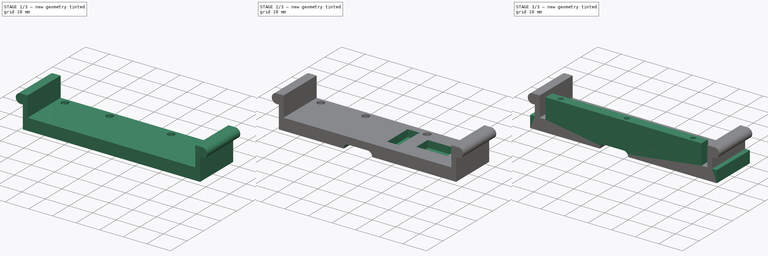
[diagram: build sequence overview — one tinted view per stage of 3, left to right]
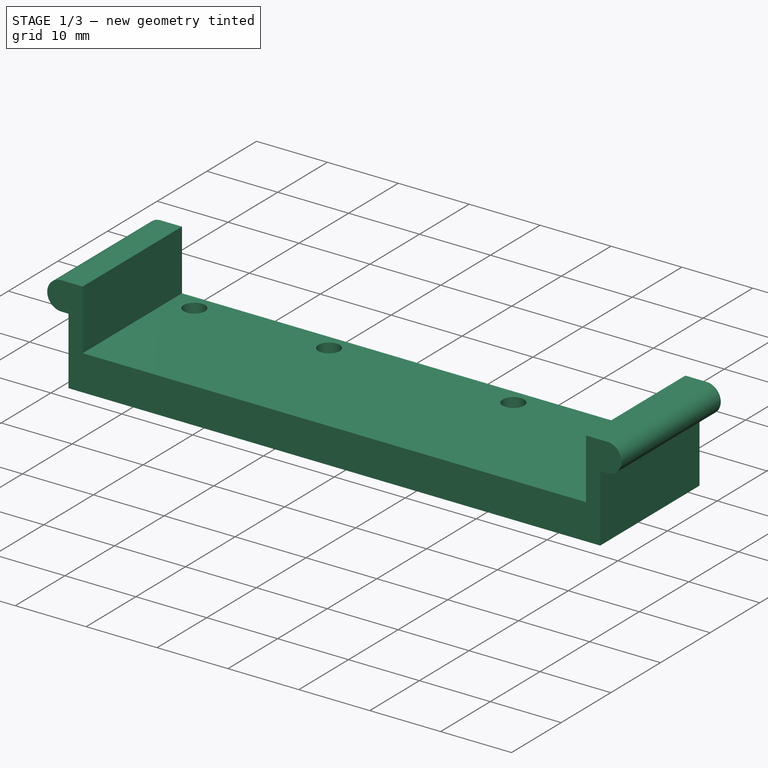
[diagram: stage 1 of 3 — iso view after this stage's code; geometry added in this stage tinted green]
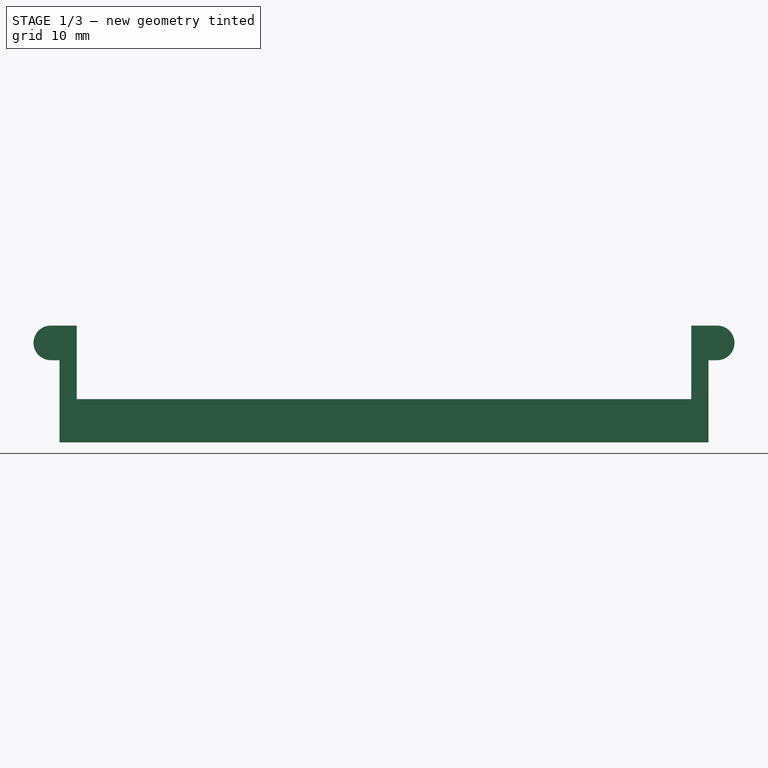
[diagram: stage 1 of 3 — front view after this stage's code; geometry added in this stage tinted green]
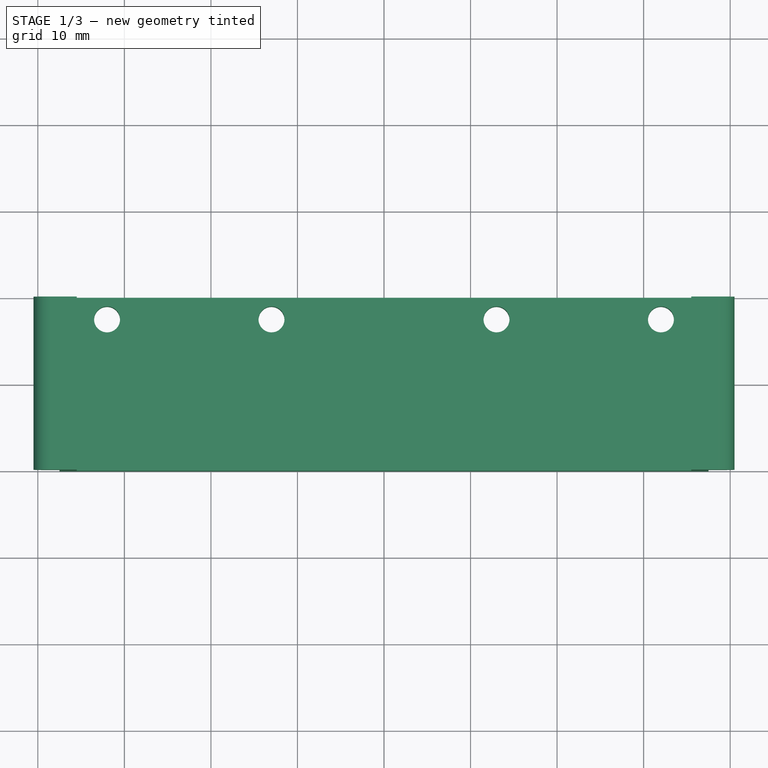
[diagram: stage 1 of 3 — top view after this stage's code; geometry added in this stage tinted green]
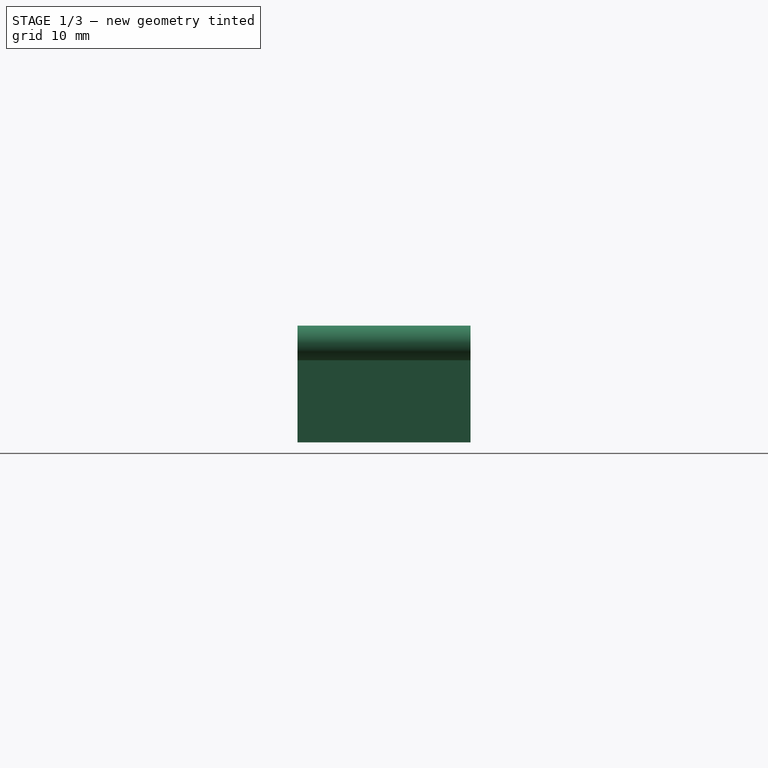
[diagram: stage 1 of 3 — right view after this stage's code; geometry added in this stage tinted green]
FCSTD DOCUMENT  (FreeCAD 0.19R23141 (Git))
Label: cnc_endstop_mount_z
License: All rights reserved
LicenseURL: http://en.wikipedia.org/wiki/All_rights_reserved
objects: Sketcher::SketchObject×7, PartDesign::Pocket×4, PartDesign::Pad×3, PartDesign::Mirrored×1, PartDesign::Body×1
note: 23 computed .brp shape members not serialized (recipe doc carries the construction recipe); baked Part::Feature solids carry a one-line shape summary decoded from their .brp

FEATURE [Sketcher::SketchObject] Sketch
  MapMode = 5
  Placement = pos=(0,0,0) rot=(1,0,0;1.5708rad)
  Support = -> [XZ_Plane]
  sketch-geometry (14):
    g0: LineSegment StartX=-35.5 StartY=5 StartZ=0 EndX=35.5 EndY=5 EndZ=0
    g1: LineSegment StartX=35.5 StartY=5 StartZ=0 EndX=35.5 EndY=13.5 EndZ=0
    g2: LineSegment StartX=35.5 StartY=13.5 StartZ=0 EndX=38.5 EndY=13.5 EndZ=0
    g3: LineSegment StartX=38.5 StartY=9.5 StartZ=0 EndX=37.5 EndY=9.5 EndZ=0
    g4: ArcOfCircle CenterX=38.5 CenterY=11.5 CenterZ=0 NormalX=0 NormalY=0 NormalZ=1 AngleXU=0 Radius=2 StartAngle=4.71239 EndAngle=7.85398
    g5: LineSegment StartX=37.5 StartY=9.5 StartZ=0 EndX=37.5 EndY=0 EndZ=0
    g6: LineSegment StartX=37.5 StartY=0 StartZ=0 EndX=-37.5 EndY=0 EndZ=0
    g7: LineSegment StartX=-37.5 StartY=0 StartZ=0 EndX=-37.5 EndY=9.5 EndZ=0
    g8: LineSegment StartX=-37.5 StartY=9.5 StartZ=0 EndX=-38.5 EndY=9.5 EndZ=0
    g9: LineSegment StartX=-38.5 StartY=13.5 StartZ=0 EndX=-35.5 EndY=13.5 EndZ=0
    g10: ArcOfCircle CenterX=-38.5 CenterY=11.5 CenterZ=0 NormalX=0 NormalY=0 NormalZ=1 AngleXU=0 Radius=2 StartAngle=1.5708 EndAngle=4.71239
    g11: LineSegment StartX=-35.5 StartY=13.5 StartZ=0 EndX=-35.5 EndY=5 EndZ=0
    g12: LineSegment [constr] StartX=-35.5 StartY=5 StartZ=0 EndX=0 EndY=0 EndZ=0
    g13: LineSegment [constr] StartX=0 StartY=0 StartZ=0 EndX=35.5 EndY=5 EndZ=0
  constraints (38):
    c: Horizontal(g0)
    c: Coincident(g0,g1)
    c: Coincident(g1,g2)
    c: Horizontal(g2)
    c: Tangent(g2,g4) = 1.5708
    c: Tangent(g3,g4) = 1.5708
    c: Horizontal(g3)
    c: Coincident(g5,g3)
    c: Vertical(g5)
    c: Coincident(g5,g6)
    c: Horizontal(g6)
    c: Coincident(g6,g7)
    c: Coincident(g7,g8)
    c: Horizontal(g8)
    c: Vertical(g7)
    c: Tangent(g8,g10) = 1.5708
    c: Tangent(g9,g10) = 1.5708
    c: Horizontal(g9)
    c: Coincident(g11,g9)
    c: PointOnObject(g-1,g6)
    c: Coincident(g0,g12)
    c: Coincident(g12,g-1)
    c: Coincident(g12,g13)
    c: Coincident(g13,g0)
    c: Equal(g13,g12)
    c: Coincident(g11,g0)
    c: Equal(g11,g1)
    c: Equal(g2,g9)
    c: Equal(g10,g4)
    c: Equal(g3,g8)
    c: DistanceY(g-1,g10) = 11.5
    c: Diameter(g10) = 4
    c: DistanceY(g-1,g0) = 5
    c: DistanceX(g6,g6) = 75
    c: DistanceX(g7,g9) = 2
    c: DistanceX(g10,g7) = 1
    c: Vertical(g1)
    c: Vertical(g11)
FEATURE [PartDesign::Pad] Pad
  Direction = (1,1,1)
  Length = 20
  Length2 = 100
  Placement = pos=(0,0,0) rot=(1,0,0;1.5708rad)
  Profile = -> Sketch
  Type = 0
FEATURE [Sketcher::SketchObject] Sketch001
  MapMode = 5
  Placement = pos=(0,3.3e-15,5) rot=(0,0,1;3.14159rad)
  Support = -> [Pad]
  sketch-geometry (3):
    g0: LineSegment [constr] StartX=-32 StartY=2.5 StartZ=0 EndX=-13 EndY=2.5 EndZ=0
    g1: Circle CenterX=-13 CenterY=2.5 CenterZ=0 NormalX=0 NormalY=0 NormalZ=1 AngleXU=0 Radius=1.5
    g2: Circle CenterX=-32 CenterY=2.5 CenterZ=0 NormalX=0 NormalY=0 NormalZ=1 AngleXU=0 Radius=1.5
  constraints (8):
    c: Horizontal(g0)
    c: Coincident(g1,g0)
    c: Coincident(g2,g0)
    c: DistanceX(g0,g0) = 19
    c: Diameter(g2) = 3
    c: Equal(g2,g1)
    c: DistanceY(g-1,g1) = 2.5
    c: DistanceX(g2,g-1) = 32
FEATURE [PartDesign::Pocket] Pocket
  BaseFeature = -> Pad
  Length = 5
  Length2 = 100
  Placement = pos=(0,0,0) rot=(1,0,0;1.5708rad)
  Profile = -> Sketch001
  Type = 1
FEATURE [PartDesign::Mirrored] Mirrored
  BaseFeature = -> Pocket
  MirrorPlane = -> Sketch001 [V_Axis]
  Originals = -> [Pocket]
  Placement = pos=(0,0,0) rot=(1,0,0;1.5708rad)
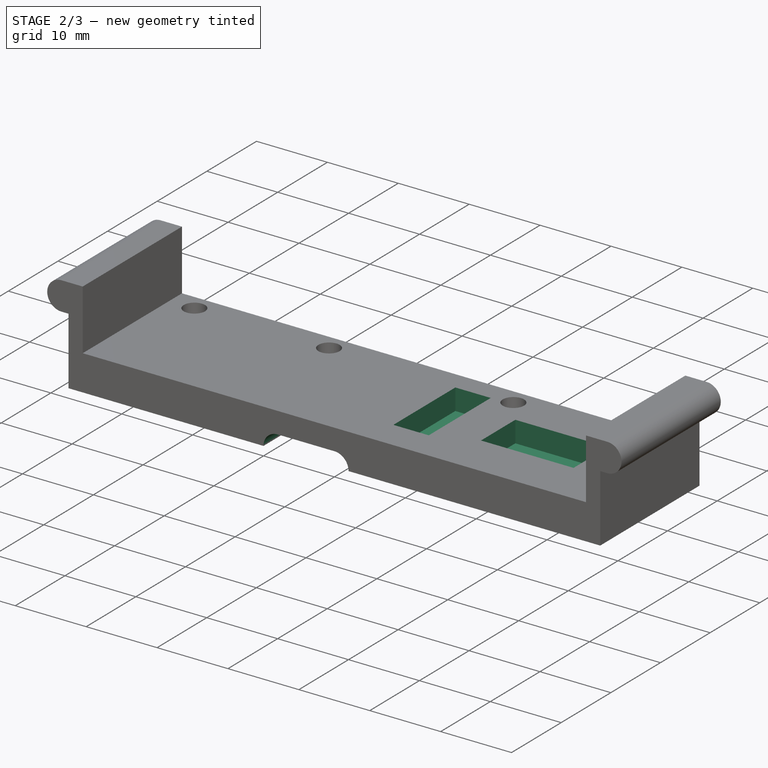
[diagram: stage 2 of 3 — iso view after this stage's code; geometry added in this stage tinted green]
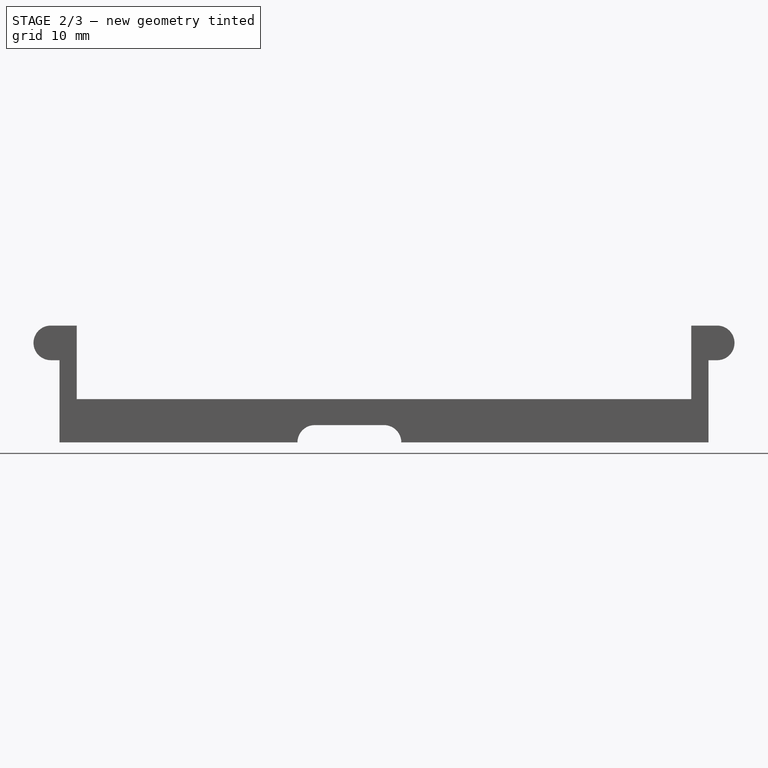
[diagram: stage 2 of 3 — front view after this stage's code; geometry added in this stage tinted green]
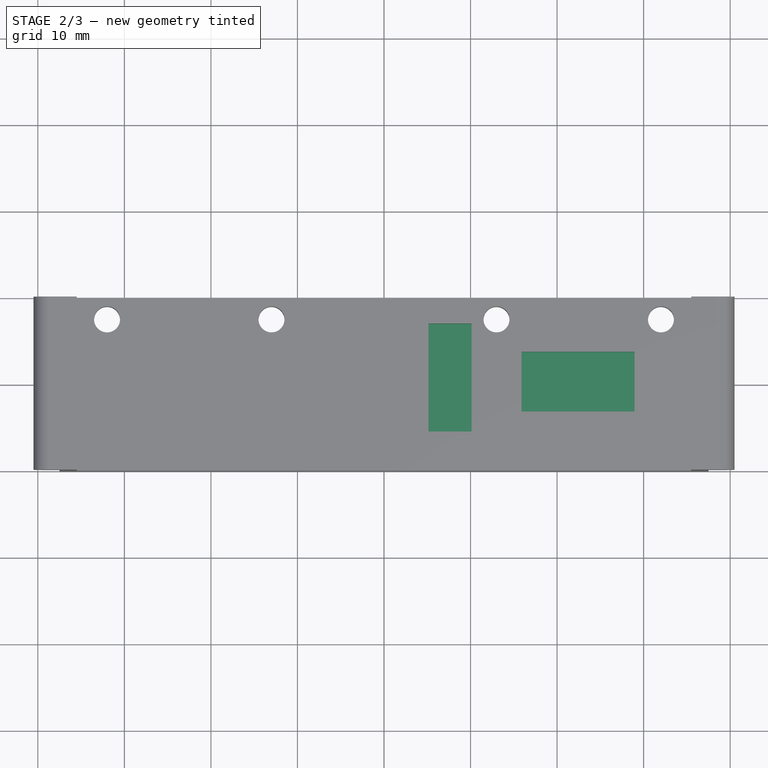
[diagram: stage 2 of 3 — top view after this stage's code; geometry added in this stage tinted green]
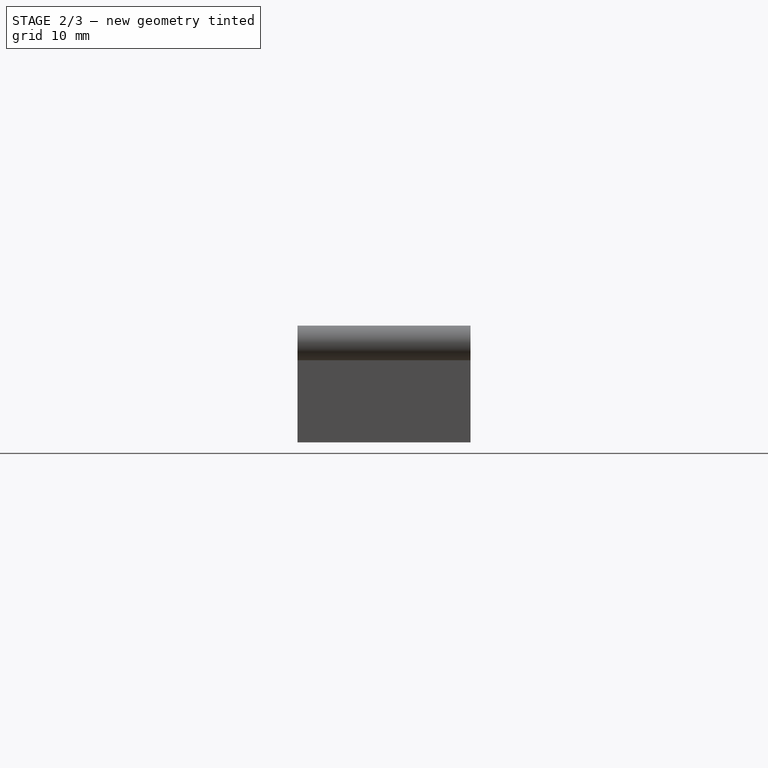
[diagram: stage 2 of 3 — right view after this stage's code; geometry added in this stage tinted green]
FEATURE [Sketcher::SketchObject] Sketch002
  MapMode = 5
  Placement = pos=(0,-20,2.22e-14) rot=(1,0,0;1.5708rad)
  Support = -> [Mirrored]
  sketch-geometry (4):
    g0: ArcOfCircle CenterX=-8 CenterY=0 CenterZ=0 NormalX=0 NormalY=0 NormalZ=1 AngleXU=0 Radius=2 StartAngle=1.5708 EndAngle=4.71239
    g1: ArcOfCircle CenterX=0 CenterY=1e-16 CenterZ=0 NormalX=0 NormalY=0 NormalZ=1 AngleXU=0 Radius=2 StartAngle=4.71239 EndAngle=7.85398
    g2: LineSegment StartX=-8 StartY=-2 StartZ=0 EndX=0 EndY=-2 EndZ=0
    g3: LineSegment StartX=-8 StartY=2 StartZ=0 EndX=4.62e-14 EndY=2 EndZ=0
  constraints (10):
    c: Tangent(g0,g3)
    c: Tangent(g0,g2)
    c: Tangent(g2,g1)
    c: Tangent(g3,g1)
    c: Horizontal(g2)
    c: Equal(g0,g1)
    c: PointOnObject(g0,g-1)
    c: DistanceX(g0,g-1) = 8
    c: DistanceX(g-1,g1) = 0
    c: Diameter(g0) = 4
FEATURE [PartDesign::Pocket] Pocket001
  BaseFeature = -> Mirrored
  Length = 5
  Length2 = 100
  Placement = pos=(0,0,0) rot=(1,0,0;1.5708rad)
  Profile = -> Sketch002
  Type = 1
FEATURE [Sketcher::SketchObject] Sketch003
  MapMode = 5
  Placement = pos=(0,7.8e-15,5) rot=(0,0,1;3.14159rad)
  sketch-geometry (8):
    g0: LineSegment StartX=-28.9417 StartY=13.1484 StartZ=0 EndX=-15.8898 EndY=13.1484 EndZ=0
    g1: LineSegment StartX=-15.8898 StartY=13.1484 StartZ=0 EndX=-15.8898 EndY=6.23865 EndZ=0
    g2: LineSegment StartX=-15.8898 StartY=6.23865 StartZ=0 EndX=-28.9417 EndY=6.23865 EndZ=0
    g3: LineSegment StartX=-28.9417 StartY=6.23865 StartZ=0 EndX=-28.9417 EndY=13.1484 EndZ=0
    g4: LineSegment StartX=-10.1317 StartY=15.4517 StartZ=0 EndX=-5.14127 EndY=15.4517 EndZ=0
    g5: LineSegment StartX=-5.14127 StartY=15.4517 StartZ=0 EndX=-5.14127 EndY=2.97569 EndZ=0
    g6: LineSegment StartX=-5.14127 StartY=2.97569 StartZ=0 EndX=-10.1317 EndY=2.97569 EndZ=0
    g7: LineSegment StartX=-10.1317 StartY=2.97569 StartZ=0 EndX=-10.1317 EndY=15.4517 EndZ=0
  constraints (16):
    c: Coincident(g0,g1)
    c: Coincident(g1,g2)
    c: Coincident(g2,g3)
    c: Coincident(g3,g0)
    c: Horizontal(g0)
    c: Horizontal(g2)
    c: Vertical(g1)
    c: Vertical(g3)
    c: Coincident(g4,g5)
    c: Coincident(g5,g6)
    c: Coincident(g6,g7)
    c: Coincident(g7,g4)
    c: Horizontal(g4)
    c: Horizontal(g6)
    c: Vertical(g5)
    c: Vertical(g7)
FEATURE [PartDesign::Pocket] Pocket002
  BaseFeature = -> Pocket001
  Length = 3
  Length2 = 100
  Placement = pos=(0,0,0) rot=(1,0,0;1.5708rad)
  Profile = -> Sketch003
  Type = 0
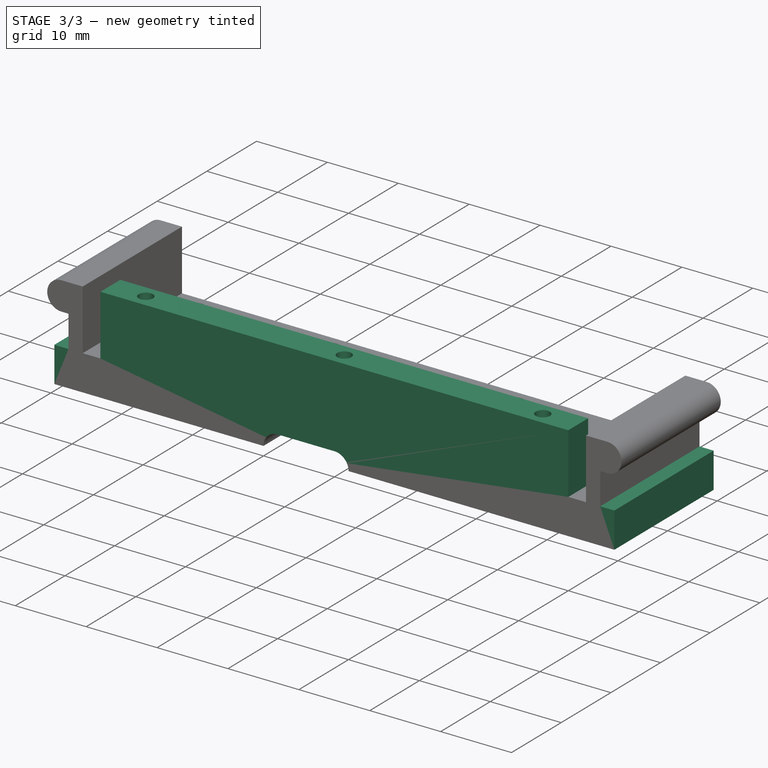
[diagram: stage 3 of 3 — iso view after this stage's code; geometry added in this stage tinted green]
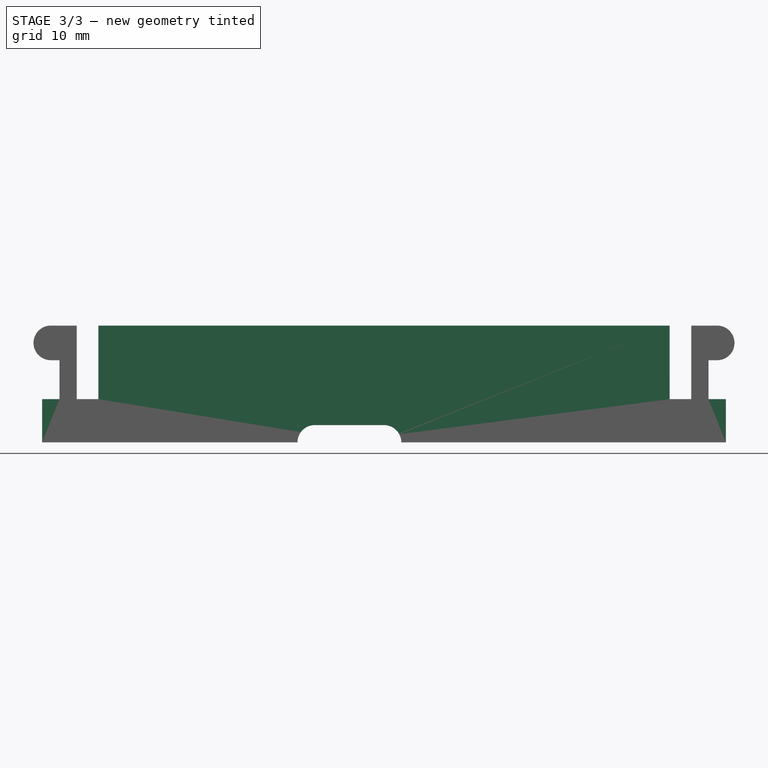
[diagram: stage 3 of 3 — front view after this stage's code; geometry added in this stage tinted green]
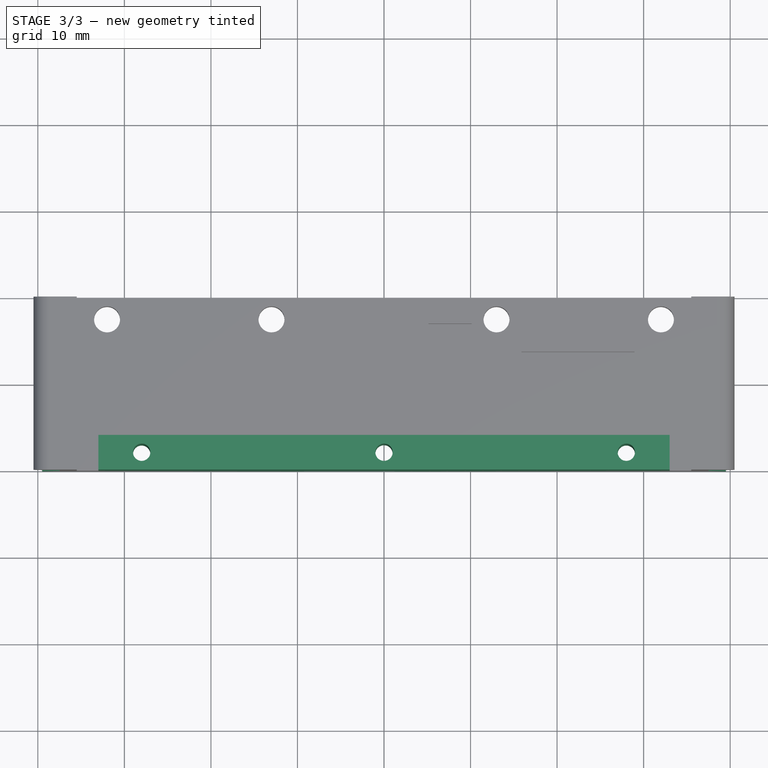
[diagram: stage 3 of 3 — top view after this stage's code; geometry added in this stage tinted green]
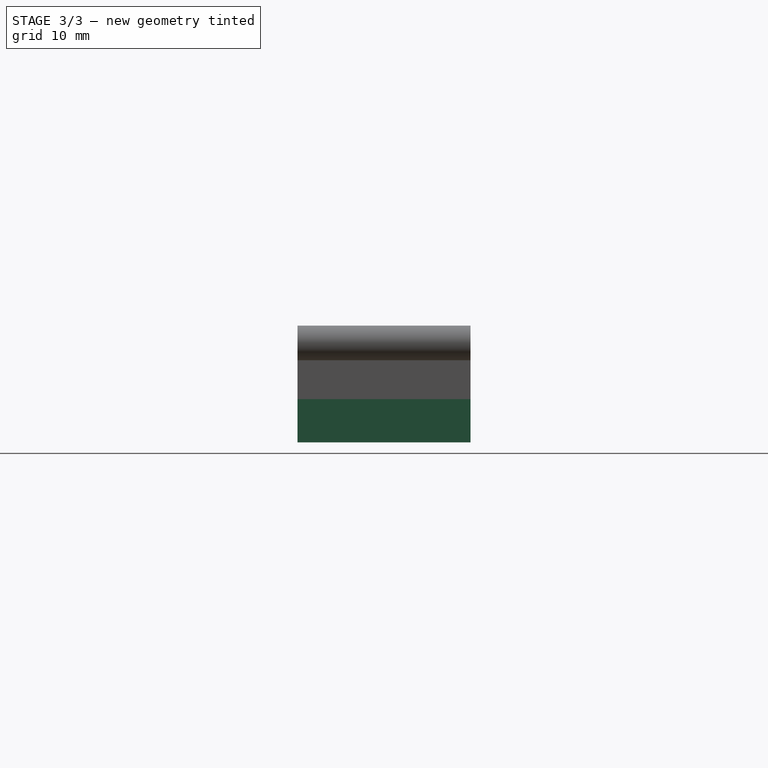
[diagram: stage 3 of 3 — right view after this stage's code; geometry added in this stage tinted green]
FEATURE [Sketcher::SketchObject] Sketch004
  ExternalGeometry = -> [Pocket002]
  MapMode = 5
  Placement = pos=(0,-20,4e-14) rot=(1,0,0;1.5708rad)
  Support = -> [Pocket002]
  sketch-geometry (8):
    g0: LineSegment StartX=-37.5 StartY=0 StartZ=0 EndX=-39.5 EndY=0 EndZ=0
    g1: LineSegment StartX=-39.5 StartY=0 StartZ=0 EndX=-39.5 EndY=5 EndZ=0
    g2: LineSegment StartX=-39.5 StartY=5 StartZ=0 EndX=-37.5 EndY=5 EndZ=0
    g3: LineSegment StartX=-37.5 StartY=5 StartZ=0 EndX=-37.5 EndY=0 EndZ=0
    g4: LineSegment StartX=37.5 StartY=0 StartZ=0 EndX=39.5 EndY=0 EndZ=0
    g5: LineSegment StartX=39.5 StartY=0 StartZ=0 EndX=39.5 EndY=5 EndZ=0
    g6: LineSegment StartX=39.5 StartY=5 StartZ=0 EndX=37.5 EndY=5 EndZ=0
    g7: LineSegment StartX=37.5 StartY=5 StartZ=0 EndX=37.5 EndY=0 EndZ=0
  constraints (22):
    c: Coincident(g0,g1)
    c: Coincident(g1,g2)
    c: Coincident(g2,g3)
    c: Coincident(g3,g0)
    c: Horizontal(g0)
    c: Horizontal(g2)
    c: Vertical(g1)
    c: Vertical(g3)
    c: Coincident(g0,g-3)
    c: PointOnObject(g1,g-4)
    c: Coincident(g4,g5)
    c: Coincident(g5,g6)
    c: Coincident(g6,g7)
    c: Coincident(g7,g4)
    c: Horizontal(g4)
    c: Horizontal(g6)
    c: Vertical(g5)
    c: Vertical(g7)
    c: Coincident(g4,g-5)
    c: PointOnObject(g5,g-4)
    c: Equal(g2,g6)
    c: DistanceX(g2,g2) = 2
FEATURE [PartDesign::Pad] Pad001
  BaseFeature = -> Pocket002
  Direction = (1,1,1)
  Length = 20
  Length2 = 100
  Placement = pos=(0,0,0) rot=(1,0,0;1.5708rad)
  Profile = -> Sketch004
  Refine = true
  Reversed = true
  Type = 0
FEATURE [Sketcher::SketchObject] Sketch005
  ExternalGeometry = -> [Pad001]
  MapMode = 5
  Placement = pos=(0,1.22e-14,5) rot=(0,0,1;3.14159rad)
  Support = -> [Pad001]
  sketch-geometry (6):
    g0: LineSegment StartX=-33 StartY=20 StartZ=0 EndX=33 EndY=20 EndZ=0
    g1: LineSegment StartX=33 StartY=20 StartZ=0 EndX=33 EndY=16 EndZ=0
    g2: LineSegment StartX=33 StartY=16 StartZ=0 EndX=-33 EndY=16 EndZ=0
    g3: LineSegment StartX=-33 StartY=16 StartZ=0 EndX=-33 EndY=20 EndZ=0
    g4: LineSegment [constr] StartX=-33 StartY=16 StartZ=0 EndX=0 EndY=0 EndZ=0
    g5: LineSegment [constr] StartX=0 StartY=0 StartZ=0 EndX=33 EndY=16 EndZ=0
  constraints (16):
    c: Coincident(g0,g1)
    c: Coincident(g1,g2)
    c: Coincident(g2,g3)
    c: Coincident(g3,g0)
    c: Horizontal(g0)
    c: Horizontal(g2)
    c: Vertical(g1)
    c: Vertical(g3)
    c: PointOnObject(g0,g-3)
    c: DistanceY(g3,g3) = 4
    c: DistanceX(g0,g0) = 66
    c: Coincident(g2,g4)
    c: Coincident(g4,g-1)
    c: Coincident(g4,g5)
    c: Coincident(g5,g1)
    c: Equal(g5,g4)
FEATURE [PartDesign::Pad] Pad002
  BaseFeature = -> Pad001
  Direction = (1,1,1)
  Length = 8.5
  Length2 = 100
  Placement = pos=(0,0,0) rot=(1,0,0;1.5708rad)
  Profile = -> Sketch005
  Refine = true
  Type = 0
FEATURE [Sketcher::SketchObject] Sketch006
  ExternalGeometry = -> [Pad002]
  MapMode = 5
  Placement = pos=(0,3.9e-14,13.5) rot=(0,0,1;3.14159rad)
  Support = -> [Pad002]
  sketch-geometry (9):
    g0: LineSegment [constr] StartX=-33 StartY=20 StartZ=0 EndX=-28 EndY=18 EndZ=0
    g1: LineSegment [constr] StartX=-28 StartY=18 StartZ=0 EndX=-33 EndY=16 EndZ=0
    g2: LineSegment [constr] StartX=33 StartY=16 StartZ=0 EndX=28 EndY=18 EndZ=0
    g3: LineSegment [constr] StartX=28 StartY=18 StartZ=0 EndX=33 EndY=20 EndZ=0
    g4: LineSegment [constr] StartX=33 StartY=20 StartZ=0 EndX=0 EndY=18 EndZ=0
    g5: LineSegment [constr] StartX=0 StartY=18 StartZ=0 EndX=33 EndY=16 EndZ=0
    g6: Circle CenterX=0 CenterY=18 CenterZ=0 NormalX=0 NormalY=0 NormalZ=1 AngleXU=0 Radius=1
    g7: Circle CenterX=28 CenterY=18 CenterZ=0 NormalX=0 NormalY=0 NormalZ=1 AngleXU=0 Radius=1
    g8: Circle CenterX=-28 CenterY=18 CenterZ=0 NormalX=0 NormalY=0 NormalZ=1 AngleXU=0 Radius=1
  constraints (21):
    c: Coincident(g0,g-4)
    c: Coincident(g1,g0)
    c: Coincident(g1,g-4)
    c: Coincident(g2,g-3)
    c: Coincident(g3,g2)
    c: Coincident(g3,g-3)
    c: Coincident(g4,g3)
    c: PointOnObject(g4,g-2)
    c: Coincident(g5,g4)
    c: Coincident(g5,g2)
    c: Equal(g2,g3)
    c: Equal(g3,g1)
    c: Equal(g1,g0)
    c: Equal(g5,g4)
    c: DistanceX(g1,g0) = 5
    c: Coincident(g6,g4)
    c: Coincident(g7,g2)
    c: Coincident(g8,g0)
    c: Diameter(g6) = 2
    c: Equal(g6,g8)
    c: Equal(g6,g7)
FEATURE [PartDesign::Pocket] Pocket003
  BaseFeature = -> Pad002
  Length = 5
  Length2 = 100
  Placement = pos=(0,0,0) rot=(1,0,0;1.5708rad)
  Profile = -> Sketch006
  Type = 1
FEATURE [PartDesign::Body] Body
  Group = -> [Sketch,Pad,Sketch001,Pocket,Mirrored,Sketch002,Pocket001,Sketch003,Pocket002,Sketch004,Pad001,Sketch005,Pad002,Sketch006,Pocket003]
  Origin = -> Origin
  Tip = -> Pocket003
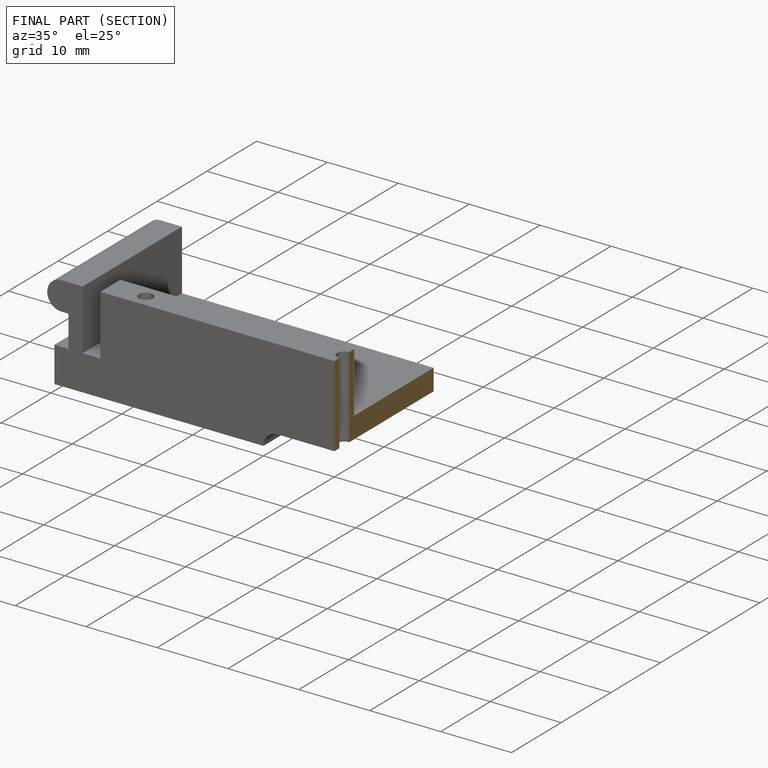
[diagram: finished part — half-section view (interior)]
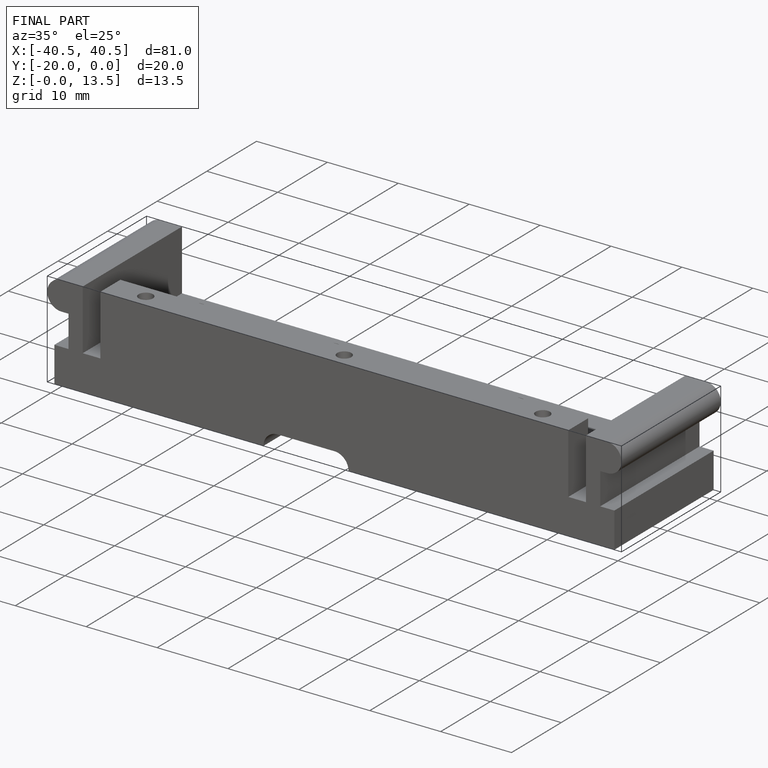
[diagram: finished part — iso view with bounding-box wireframe]
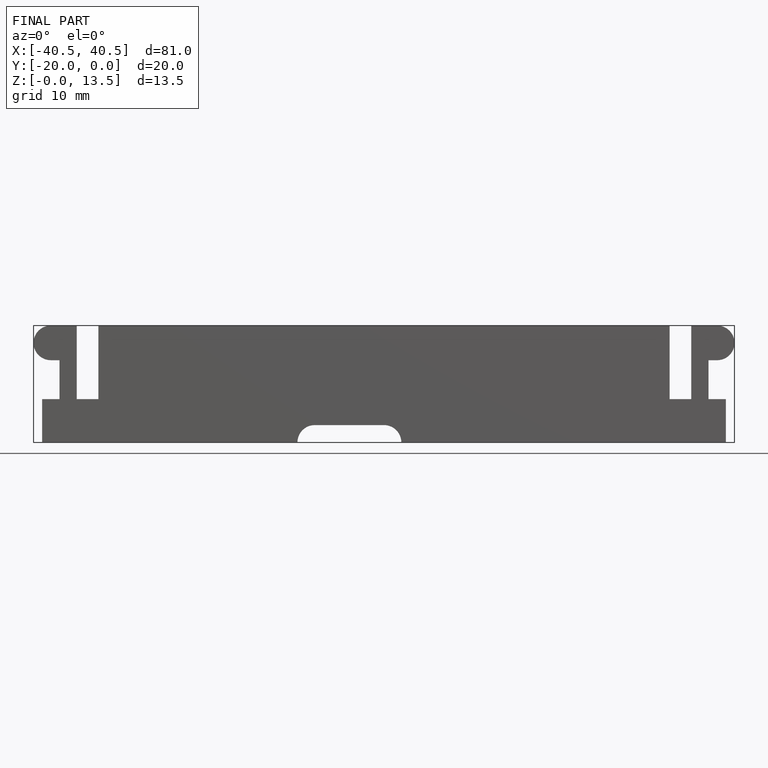
[diagram: finished part — front view with bounding-box wireframe]
